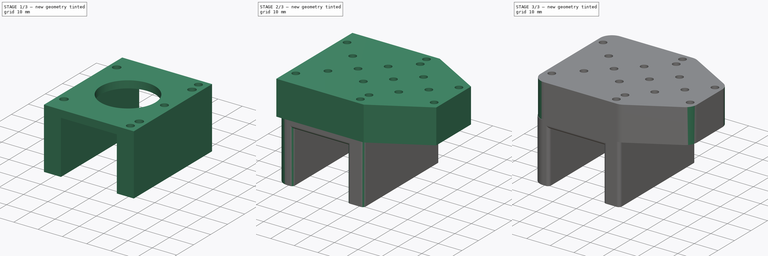
[diagram: build sequence overview — one tinted view per stage of 3, left to right]
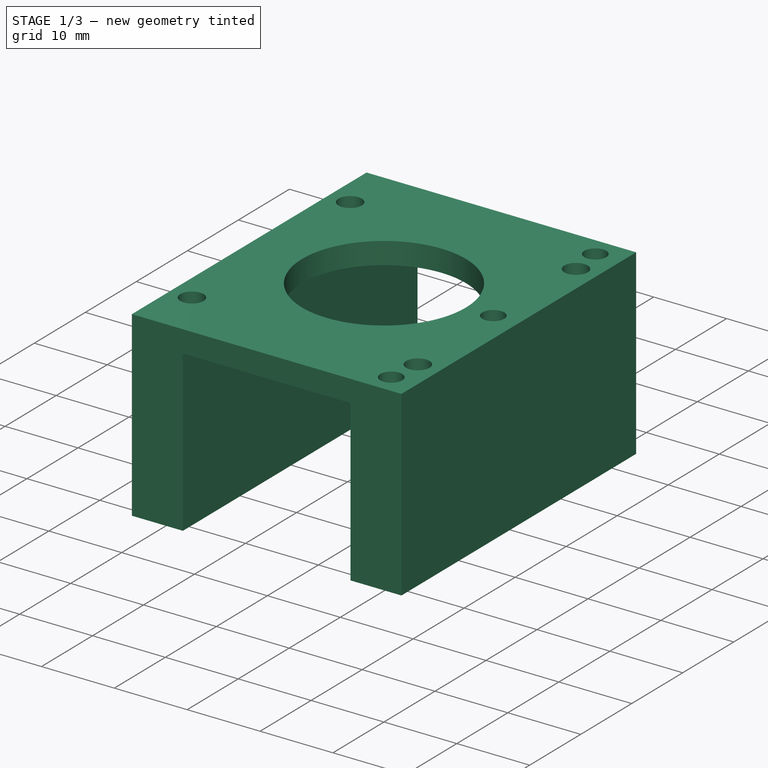
[diagram: stage 1 of 3 — iso view after this stage's code; geometry added in this stage tinted green]
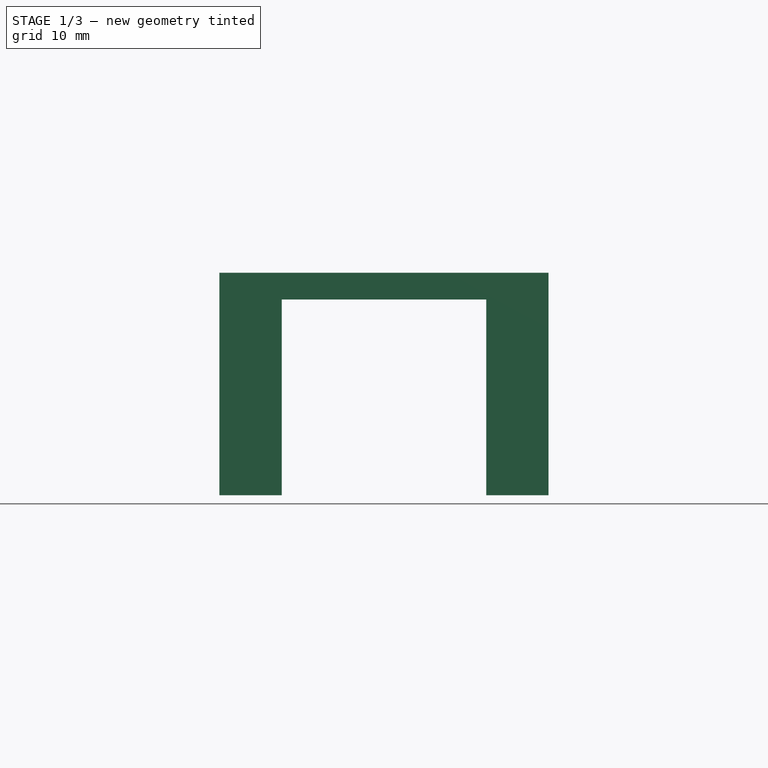
[diagram: stage 1 of 3 — front view after this stage's code; geometry added in this stage tinted green]
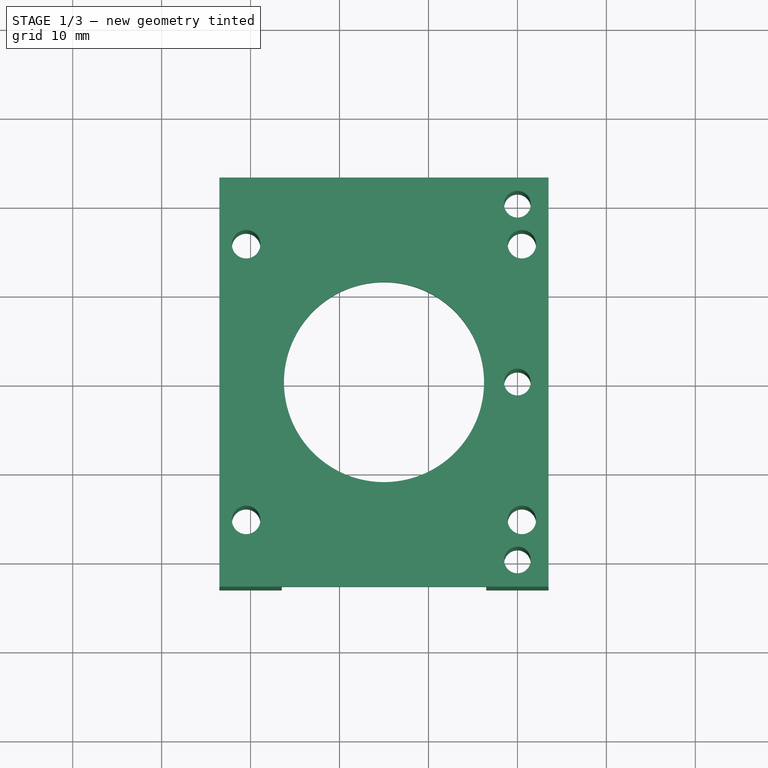
[diagram: stage 1 of 3 — top view after this stage's code; geometry added in this stage tinted green]
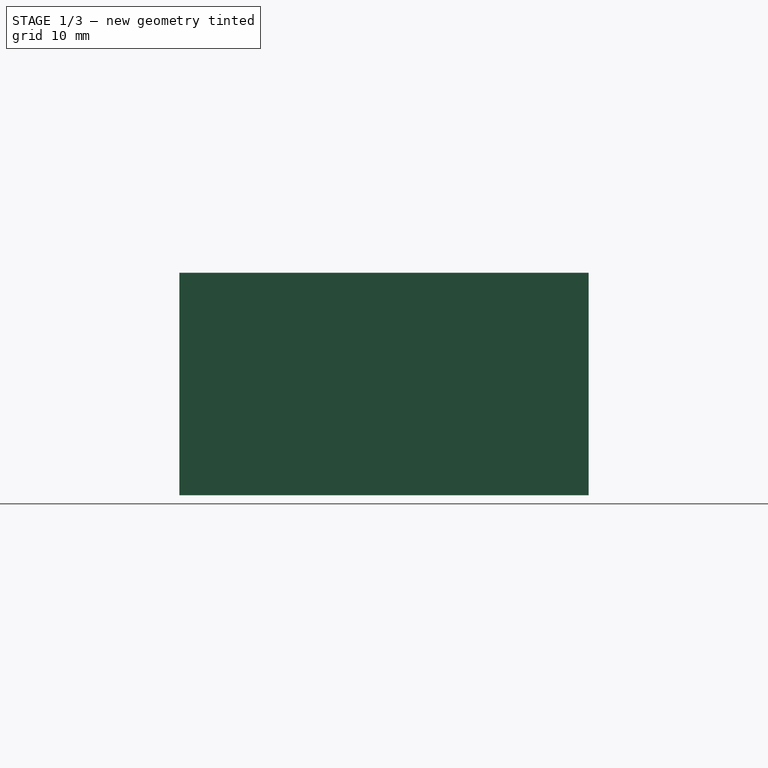
[diagram: stage 1 of 3 — right view after this stage's code; geometry added in this stage tinted green]
FCSTD DOCUMENT  (FreeCAD 1.1R38728 (Git))
Label: motor_holder
License: All rights reserved
LicenseURL: https://en.wikipedia.org/wiki/All_rights_reserved
objects: Sketcher::SketchObject×3, PartDesign::Pad×3, PartDesign::Fillet×3, PartDesign::Body×2, PartDesign::Chamfer×1, App::Link×1
note: 29 computed .brp shape members not serialized (recipe doc carries the construction recipe); baked Part::Feature solids carry a one-line shape summary decoded from their .brp
EXTERNAL_REF file=Masterfile.FCStd obj=Spreadsheet

FEATURE [Sketcher::SketchObject] Sketch002
  ArcFitTolerance = 1e-06
  AttachmentSupport = -> [XY_Plane001]
  FullyConstrained = false
  MakeInternals = false
  MapMode = 5
  expr: Constraints[20] = 31 mm
  expr: Constraints[22] = 0.5 mm
  expr: Constraints[23] = 37 mm
  expr: Constraints[24] = 46 mm
  expr: Constraints[29] = 40 mm
  expr: Constraints[30] = <<LinkDimensions>>.drillDiameter
  expr: Constraints[32] = <<LinkDimensions>>.drillDiameter + 0.2
  sketch-geometry (17):
    g0: LineSegment StartX=-33.5 StartY=23 StartZ=0 EndX=-33.5 EndY=-23 EndZ=0
    g1: LineSegment StartX=-33.5 StartY=-23 StartZ=0 EndX=3.5 EndY=-23 EndZ=0
    g2: LineSegment StartX=3.5 StartY=-23 StartZ=0 EndX=3.5 EndY=23 EndZ=0
    g3: LineSegment StartX=3.5 StartY=23 StartZ=0 EndX=-33.5 EndY=23 EndZ=0
    g4: LineSegment [constr] StartX=-15 StartY=17.0018 StartZ=0 EndX=-15 EndY=-12.6011 EndZ=0
    g5: Circle CenterX=-15 CenterY=0 CenterZ=0 NormalX=0 NormalY=0 NormalZ=1 AngleXU=0 Radius=11.25
    g6: Circle CenterX=-30.5 CenterY=15.5 CenterZ=0 NormalX=0 NormalY=0 NormalZ=1 AngleXU=0 Radius=1.6
    g7: Circle CenterX=0.5 CenterY=15.5 CenterZ=0 NormalX=0 NormalY=0 NormalZ=1 AngleXU=0 Radius=1.6
    g8: Circle CenterX=0 CenterY=20 CenterZ=0 NormalX=0 NormalY=0 NormalZ=1 AngleXU=0 Radius=1.5
    g9: Circle CenterX=0.5 CenterY=-15.5 CenterZ=0 NormalX=0 NormalY=0 NormalZ=1 AngleXU=0 Radius=1.6
    g10: Circle CenterX=0 CenterY=0 CenterZ=0 NormalX=0 NormalY=0 NormalZ=1 AngleXU=0 Radius=1.5
    g11: Circle CenterX=0 CenterY=-20 CenterZ=0 NormalX=0 NormalY=0 NormalZ=1 AngleXU=0 Radius=1.5
    g12: Circle CenterX=-30.5 CenterY=-15.5 CenterZ=0 NormalX=0 NormalY=0 NormalZ=1 AngleXU=0 Radius=1.6
    g13: LineSegment [constr] StartX=-30.5 StartY=15.5 StartZ=0 EndX=-30.5 EndY=-15.5 EndZ=0
    g14: LineSegment [constr] StartX=-30.5 StartY=-15.5 StartZ=0 EndX=0.5 EndY=-15.5 EndZ=0
    g15: LineSegment [constr] StartX=0.5 StartY=-15.5 StartZ=0 EndX=0.5 EndY=15.5 EndZ=0
    g16: LineSegment [constr] StartX=0.5 StartY=15.5 StartZ=0 EndX=-30.5 EndY=15.5 EndZ=0
  constraints (40):
    c: Coincident(g0,g1)
    c: Coincident(g1,g2)
    c: Coincident(g2,g3)
    c: Coincident(g3,g0)
    c: Vertical(g2)
    c: Horizontal(g1)
    c: Horizontal(g3)
    c: Symmetric(g0,g0,g-1)
    c: Symmetric(g0,g2,g4)
    c: Diameter(g5) = 22.5
    c: Coincident(g10,g-1)
    c: Coincident(g13,g14)
    c: Coincident(g14,g15)
    c: Coincident(g15,g16)
    c: Coincident(g16,g13)
    c: Vertical(g15)
    c: Horizontal(g14)
    c: Coincident(g13,g6)
    c: Coincident(g14,g9)
    c: Equal(g16,g13)
    c: DistanceX(g16,g16) = 31
    c: Symmetric(g7,g6,g4)
    c: DistanceX(g10,g9) = 0.5
    c: DistanceX(g3,g3) = 37
    c: DistanceY(g0,g0) = 46
    c: Coincident(g7,g15)
    c: Coincident(g12,g13)
    c: Symmetric(g6,g12,g-1)
    c: Symmetric(g8,g11,g-1)
    c: DistanceY(g11,g8) = 40
    c: Diameter(g11) = 3
    c: PointOnObject(g11,g-2)
    c: Diameter(g9) = 3.2
    c: PointOnObject(g5,g4)
    c: PointOnObject(g5,g-1)
    c: Equal(g8,g10)
    c: Equal(g10,g11)
    c: Equal(g9,g12)
    c: Equal(g12,g6)
    c: Equal(g6,g7)
FEATURE [PartDesign::Pad] Pad001
  Direction = (0,0,1)
  Length = 3
  Length2 = 10
  Profile = -> Sketch002
  ReferenceAxis = -> Sketch002 [N_Axis]
  Refine = true
  Reversed = true
  Suppressed = false
  Type = 0
  expr: Length = 3 mm
FEATURE [Sketcher::SketchObject] Sketch003
  ArcFitTolerance = 1e-06
  AttachmentSupport = -> [Pad001]
  ExternalGeometry = -> [Pad001]
  FullyConstrained = true
  MakeInternals = false
  MapMode = 5
  expr: Constraints[17] = <<LinkDimensions>>.drillDiameter
  sketch-geometry (15):
    g0: LineSegment StartX=-33.5 StartY=23 StartZ=0 EndX=-33.5 EndY=-23 EndZ=0
    g1: LineSegment StartX=-33.5 StartY=-23 StartZ=0 EndX=-26.5 EndY=-23 EndZ=0
    g2: LineSegment StartX=-26.5 StartY=-23 StartZ=0 EndX=-26.5 EndY=23 EndZ=0
    g3: LineSegment StartX=-26.5 StartY=23 StartZ=0 EndX=-33.5 EndY=23 EndZ=0
    g4: LineSegment StartX=-3.5 StartY=23 StartZ=0 EndX=-3.5 EndY=-23 EndZ=0
    g5: LineSegment StartX=-3.5 StartY=-23 StartZ=0 EndX=3.5 EndY=-23 EndZ=0
    g6: LineSegment StartX=3.5 StartY=-23 StartZ=0 EndX=3.5 EndY=23 EndZ=0
    g7: LineSegment StartX=3.5 StartY=23 StartZ=0 EndX=-3.5 EndY=23 EndZ=0
    g8: Circle CenterX=-30.5 CenterY=15.5 CenterZ=0 NormalX=0 NormalY=0 NormalZ=1 AngleXU=0 Radius=1.6
    g9: Circle CenterX=-30.5 CenterY=-15.5 CenterZ=0 NormalX=0 NormalY=0 NormalZ=1 AngleXU=0 Radius=1.6
    g10: Circle CenterX=0.5 CenterY=-15.5 CenterZ=0 NormalX=0 NormalY=0 NormalZ=1 AngleXU=0 Radius=1.6
    g11: Circle CenterX=0 CenterY=-20 CenterZ=0 NormalX=0 NormalY=0 NormalZ=1 AngleXU=0 Radius=1.5
    g12: Circle CenterX=0 CenterY=0 CenterZ=0 NormalX=0 NormalY=0 NormalZ=1 AngleXU=0 Radius=1.5
    g13: Circle CenterX=0.5 CenterY=15.5 CenterZ=0 NormalX=0 NormalY=0 NormalZ=1 AngleXU=0 Radius=1.6
    g14: Circle CenterX=0 CenterY=20 CenterZ=0 NormalX=0 NormalY=0 NormalZ=1 AngleXU=0 Radius=1.5
  constraints (34):
    c: Coincident(g0,g1)
    c: Coincident(g1,g2)
    c: Coincident(g2,g3)
    c: Coincident(g3,g0)
    c: Vertical(g2)
    c: Horizontal(g1)
    c: Coincident(g4,g5)
    c: Coincident(g5,g6)
    c: Coincident(g6,g7)
    c: Coincident(g7,g4)
    c: Vertical(g4)
    c: Vertical(g6)
    c: Horizontal(g5)
    c: Coincident(g12,g-1)
    c: Equal(g10,g13)
    c: Equal(g11,g12)
    c: Equal(g12,g14)
    c: Diameter(g11) = 3
    c: Coincident(g8,g-8)
    c: Coincident(g9,g-7)
    c: Coincident(g13,g-5)
    c: Equal(g13,g8)
    c: Equal(g8,g9)
    c: Equal(g-8,g8)
    c: Coincident(g10,g-6)
    c: Coincident(g11,g-4)
    c: Coincident(g14,g-9)
    c: PointOnObject(g2,g-10)
    c: PointOnObject(g4,g-10)
    c: Coincident(g0,g-11)
    c: Coincident(g5,g-11)
    c: Coincident(g0,g-10)
    c: Equal(g7,g3)
    c: Symmetric(g4,g6,g-2)
FEATURE [PartDesign::Pad] Pad002
  BaseFeature = -> Pad001
  Direction = (0,0,1)
  Length = 25
  Length2 = 10
  Profile = -> Sketch003
  ReferenceAxis = -> Sketch003 [N_Axis]
  Refine = true
  Reversed = true
  Suppressed = false
  Type = 0
  expr: Length = <<LinkDimensions>>.mShaftLength + 1
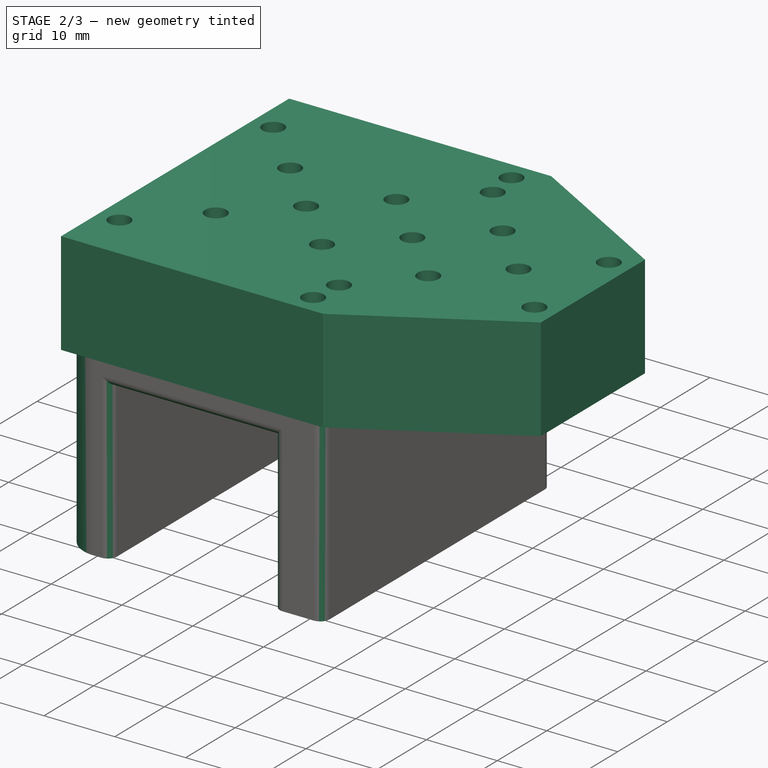
[diagram: stage 2 of 3 — iso view after this stage's code; geometry added in this stage tinted green]
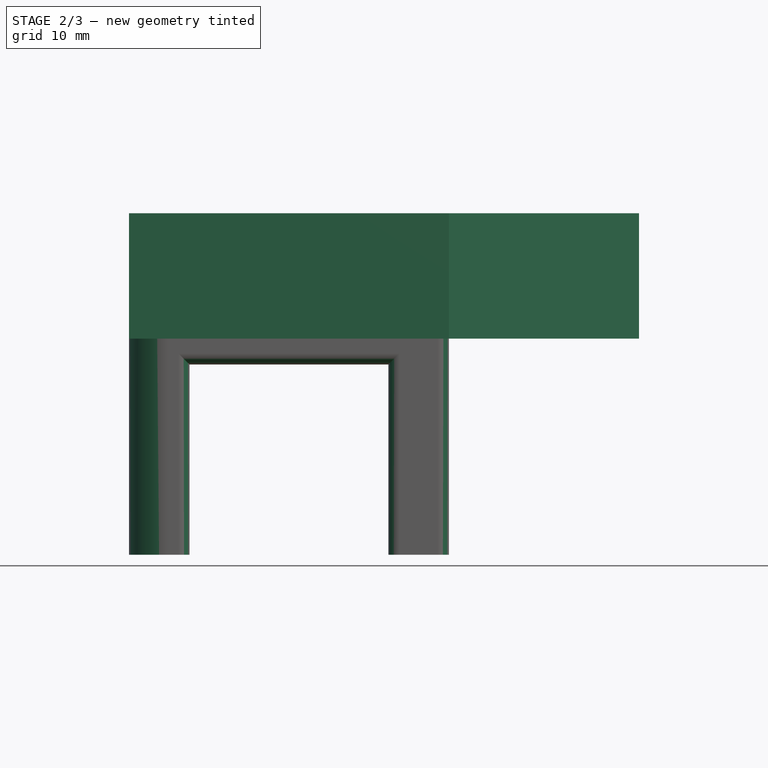
[diagram: stage 2 of 3 — front view after this stage's code; geometry added in this stage tinted green]
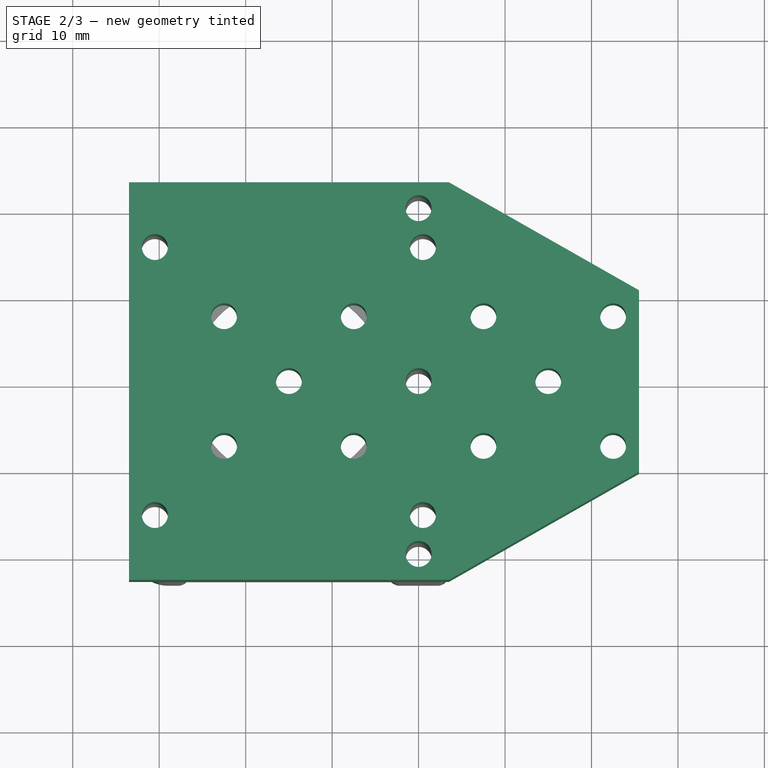
[diagram: stage 2 of 3 — top view after this stage's code; geometry added in this stage tinted green]
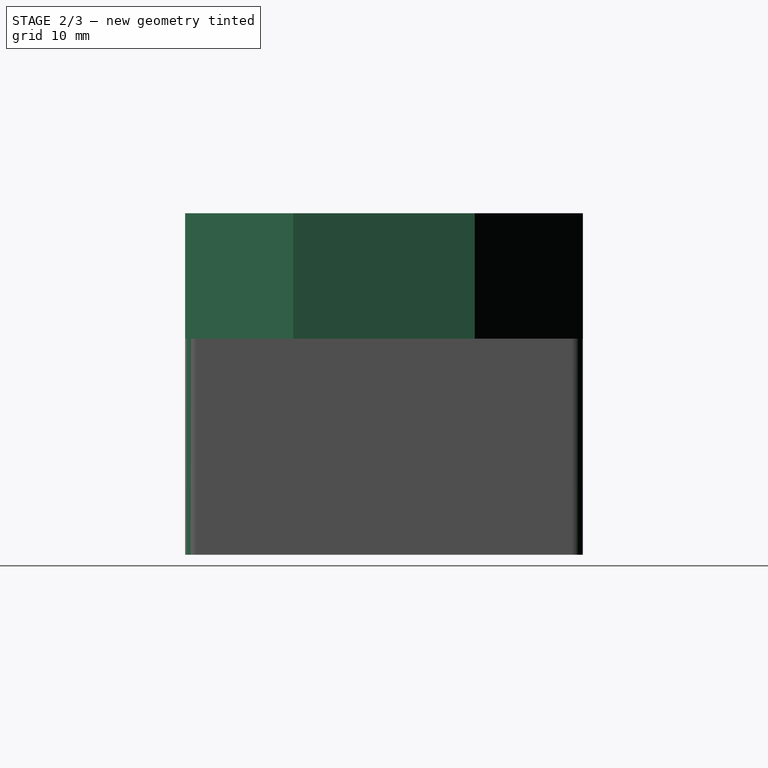
[diagram: stage 2 of 3 — right view after this stage's code; geometry added in this stage tinted green]
FEATURE [Sketcher::SketchObject] Sketch
  ArcFitTolerance = 1e-06
  AttachmentSupport = -> [XY_Plane]
  FullyConstrained = false
  MakeInternals = false
  MapMode = 5
  expr: Constraints[12] = <<LinkDimensions>>.mHoleSpacing
  expr: Constraints[24] = <<LinkDimensions>>.pulleyDiameter * 2
  expr: Constraints[3] = <<LinkDimensions>>.drillDiameter
  expr: Constraints[4] = 40 mm
  expr: Constraints[60] = <<LinkDimensions>>.mHolderThickness
  expr: Constraints[61] = <<LinkDimensions>>.mHolderThickness
  expr: Constraints[62] = <<LinkDimensions>>.mHolderThickness
  expr: Constraints[63] = <<LinkDimensions>>.mHolderThickness
  expr: Constraints[64] = <<LinkDimensions>>.mHolderThickness
  sketch-geometry (36):
    g0: Circle CenterX=0 CenterY=20 CenterZ=0 NormalX=0 NormalY=0 NormalZ=1 AngleXU=0 Radius=1.5
    g1: Circle CenterX=0 CenterY=-20 CenterZ=0 NormalX=0 NormalY=0 NormalZ=1 AngleXU=0 Radius=1.5
    g2: LineSegment [constr] StartX=-30.5 StartY=15.5 StartZ=0 EndX=-30.5 EndY=-15.5 EndZ=0
    g3: LineSegment [constr] StartX=-30.5 StartY=-15.5 StartZ=0 EndX=0.5 EndY=-15.5 EndZ=0
    g4: LineSegment [constr] StartX=0.5 StartY=-15.5 StartZ=0 EndX=0.5 EndY=15.5 EndZ=0
    g5: LineSegment [constr] StartX=0.5 StartY=15.5 StartZ=0 EndX=-30.5 EndY=15.5 EndZ=0
    g6: Circle CenterX=-30.5 CenterY=15.5 CenterZ=0 NormalX=0 NormalY=0 NormalZ=1 AngleXU=0 Radius=1.5
    g7: Circle CenterX=0.5 CenterY=15.5 CenterZ=0 NormalX=0 NormalY=0 NormalZ=1 AngleXU=0 Radius=1.5
    g8: Circle CenterX=-30.5 CenterY=-15.5 CenterZ=0 NormalX=0 NormalY=0 NormalZ=1 AngleXU=0 Radius=1.5
    g9: Circle CenterX=0.5 CenterY=-15.5 CenterZ=0 NormalX=0 NormalY=0 NormalZ=1 AngleXU=0 Radius=1.5
    g10: Circle CenterX=-15 CenterY=1e-16 CenterZ=0 NormalX=0 NormalY=0 NormalZ=1 AngleXU=0 Radius=1.5
    g11: Circle CenterX=0 CenterY=0 CenterZ=0 NormalX=0 NormalY=0 NormalZ=1 AngleXU=0 Radius=1.5
    g12: Circle CenterX=15 CenterY=1e-16 CenterZ=0 NormalX=0 NormalY=0 NormalZ=1 AngleXU=0 Radius=1.5
    g13: LineSegment [constr] StartX=7.5 StartY=7.5 StartZ=0 EndX=7.5 EndY=-7.5 EndZ=0
    g14: LineSegment [constr] StartX=7.5 StartY=-7.5 StartZ=0 EndX=22.5 EndY=-7.5 EndZ=0
    g15: LineSegment [constr] StartX=22.5 StartY=-7.5 StartZ=0 EndX=22.5 EndY=7.5 EndZ=0
    g16: LineSegment [constr] StartX=22.5 StartY=7.5 StartZ=0 EndX=7.5 EndY=7.5 EndZ=0
    g17: LineSegment [constr] StartX=15 StartY=-18.4107 StartZ=0 EndX=15 EndY=18.988 EndZ=0
    g18: Circle CenterX=7.5 CenterY=7.5 CenterZ=0 NormalX=0 NormalY=0 NormalZ=1 AngleXU=0 Radius=1.5
    g19: Circle CenterX=22.5 CenterY=7.5 CenterZ=0 NormalX=0 NormalY=0 NormalZ=1 AngleXU=0 Radius=1.5
    g20: Circle CenterX=22.5 CenterY=-7.5 CenterZ=0 NormalX=0 NormalY=0 NormalZ=1 AngleXU=0 Radius=1.5
    g21: Circle CenterX=7.5 CenterY=-7.5 CenterZ=0 NormalX=0 NormalY=0 NormalZ=1 AngleXU=0 Radius=1.5
    g22: LineSegment StartX=-33.5 StartY=23 StartZ=0 EndX=3.5 EndY=23 EndZ=0
    g23: LineSegment StartX=3.5 StartY=23 StartZ=0 EndX=25.5 EndY=10.5 EndZ=0
    g24: LineSegment StartX=25.5 StartY=10.5 StartZ=0 EndX=25.5 EndY=-10.5 EndZ=0
    g25: LineSegment StartX=25.5 StartY=-10.5 StartZ=0 EndX=3.5 EndY=-23 EndZ=0
    g26: LineSegment StartX=3.5 StartY=-23 StartZ=0 EndX=-33.5 EndY=-23 EndZ=0
    g27: LineSegment StartX=-33.5 StartY=-23 StartZ=0 EndX=-33.5 EndY=23 EndZ=0
    g28: LineSegment [constr] StartX=-22.5 StartY=7.5 StartZ=0 EndX=-22.5 EndY=-7.5 EndZ=0
    g29: LineSegment [constr] StartX=-22.5 StartY=-7.5 StartZ=0 EndX=-7.5 EndY=-7.5 EndZ=0
    g30: LineSegment [constr] StartX=-7.5 StartY=-7.5 StartZ=0 EndX=-7.5 EndY=7.5 EndZ=0
    g31: LineSegment [constr] StartX=-7.5 StartY=7.5 StartZ=0 EndX=-22.5 EndY=7.5 EndZ=0
    g32: Circle CenterX=-22.5 CenterY=7.5 CenterZ=0 NormalX=0 NormalY=0 NormalZ=1 AngleXU=0 Radius=1.5
    g33: Circle CenterX=-22.5 CenterY=-7.5 CenterZ=0 NormalX=0 NormalY=0 NormalZ=1 AngleXU=0 Radius=1.5
    g34: Circle CenterX=-7.5 CenterY=-7.5 CenterZ=0 NormalX=0 NormalY=0 NormalZ=1 AngleXU=0 Radius=1.5
    g35: Circle CenterX=-7.5 CenterY=7.5 CenterZ=0 NormalX=0 NormalY=0 NormalZ=1 AngleXU=0 Radius=1.5
  constraints (84):
    c: PointOnObject(g0,g-2)
    c: Symmetric(g0,g1,g-1)
    c: Equal(g0,g1)
    c: Diameter(g0) = 3
    c: DistanceY(g1,g0) = 40
    c: Coincident(g2,g3)
    c: Coincident(g3,g4)
    c: Coincident(g4,g5)
    c: Coincident(g5,g2)
    c: Vertical(g4)
    c: Horizontal(g3)
    c: Horizontal(g5)
    c: DistanceX(g5,g5) = 31
    c: Equal(g2,g5)
    c: Symmetric(g2,g2,g-1)
    c: Coincident(g6,g2)
    c: Coincident(g7,g4)
    c: Coincident(g8,g2)
    c: Coincident(g9,g3)
    c: Equal(g6,g8)
    c: Equal(g8,g9)
    c: Equal(g9,g7)
    c: Equal(g7,g1)
    c: Coincident(g11,g-1)
    c: DistanceX(g10,g12) = 30
    c: Symmetric(g10,g12,g-2)
    c: Equal(g10,g11)
    c: Equal(g11,g12)
    c: Equal(g12,g9)
    c: Symmetric(g2,g4,g10)
    c: Coincident(g13,g14)
    c: Coincident(g14,g15)
    c: Coincident(g15,g16)
    c: Coincident(g16,g13)
    c: Vertical(g13)
    c: Horizontal(g14)
    c: Horizontal(g16)
    c: Distance(g13,g15) = 15
    c: Equal(g16,g13)
    c: Symmetric(g15,g14,g-1)
    c: PointOnObject(g12,g17)
    c: Symmetric(g13,g15,g17)
    c: Coincident(g18,g13)
    c: Coincident(g19,g15)
    c: Coincident(g20,g14)
    c: Coincident(g21,g13)
    c: Equal(g18,g19)
    c: Equal(g19,g20)
    c: Equal(g20,g21)
    c: Equal(g21,g12)
    c: Horizontal(g22)
    c: Coincident(g22,g23)
    c: Coincident(g23,g24)
    c: Coincident(g24,g25)
    c: Coincident(g25,g26)
    c: Coincident(g26,g27)
    c: Coincident(g27,g22)
    c: Symmetric(g22,g26,g-1)
    c: Symmetric(g22,g25,g-1)
    c: Symmetric(g23,g24,g-1)
    c: DistanceX(g22,g2) = 3
    c: DistanceX(g4,g22) = 3
    c: DistanceX(g15,g23) = 3
    c: DistanceY(g25,g1) = 3
    c: DistanceY(g24,g14) = 3
    c: Coincident(g28,g29)
    c: Coincident(g29,g30)
    c: Coincident(g30,g31)
    c: Coincident(g31,g28)
    c: Vertical(g28)
    c: Vertical(g30)
    c: Horizontal(g29)
    c: Horizontal(g31)
    c: Symmetric(g30,g13,g-2)
    c: Equal(g31,g28)
    c: Equal(g28,g16)
    c: Coincident(g32,g28)
    c: Coincident(g33,g28)
    c: Coincident(g34,g29)
    c: Coincident(g35,g30)
    c: Equal(g32,g33)
    c: Equal(g33,g34)
    c: Equal(g34,g35)
    c: Equal(g35,g10)
FEATURE [PartDesign::Pad] Pad
  Direction = (0,0,1)
  Length = 14.5
  Length2 = 10
  Profile = -> Sketch
  ReferenceAxis = -> Sketch [N_Axis]
  Refine = true
  Suppressed = false
  Type = 0
  expr: Length = <<LinkDimensions>>.mHolderHeight
FEATURE [PartDesign::Fillet] Fillet001
  Base = -> Pad002 [Edge31,Edge8,Edge10,Edge18,Edge9,Edge12,Edge16,Edge32]
  BaseFeature = -> Pad002
  Radius = 1.3
  Refine = true
  SupportTransform = false
  Suppressed = false
  UseAllEdges = false
  expr: Radius = <<LinkDimensions>>.filletRadius
FEATURE [PartDesign::Body] Body  label="motor_holder1"
  AllowCompound = false
  Group = -> [Sketch,Pad,Chamfer,Fillet]
  Origin = -> Origin
  Tip = -> Fillet
FEATURE [PartDesign::Fillet] Fillet002
  Base = -> Fillet001 [Edge10,Edge18]
  BaseFeature = -> Fillet001
  Radius = 4.6
  Refine = true
  SupportTransform = false
  Suppressed = false
  UseAllEdges = false
  expr: Radius = 4.6 mm
FEATURE [PartDesign::Body] Body001  label="motor_holder2"
  AllowCompound = false
  Group = -> [Sketch002,Pad001,Sketch003,Pad002,Fillet001,Fillet002]
  Origin = -> Origin001
  Placement = pos=(0,2.2e-15,14.5) rot=(1,0,0;3.14159rad)
  Tip = -> Fillet002
  expr: .Placement.Base.z = <<LinkDimensions>>.mHolderHeight
FEATURE [App::Link] Link001  label="LinkDimensions"
  LinkedObject = -> <external Masterfile.FCStd>#Spreadsheet
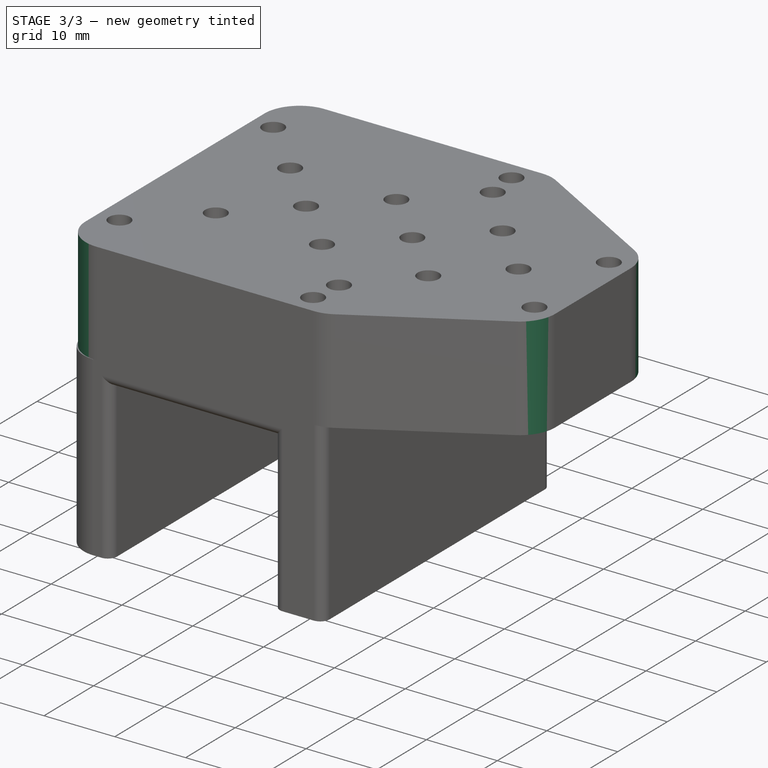
[diagram: stage 3 of 3 — iso view after this stage's code; geometry added in this stage tinted green]
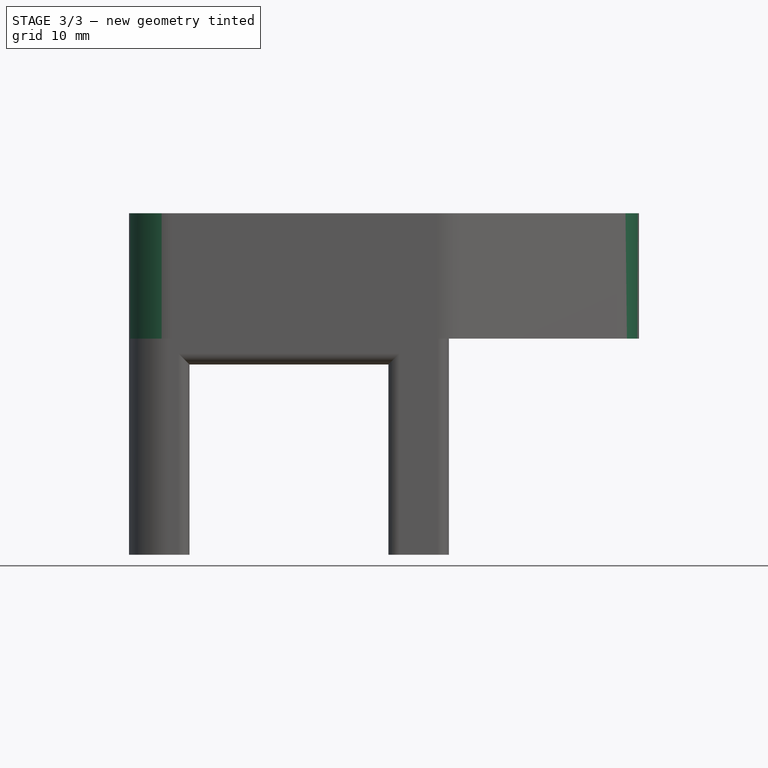
[diagram: stage 3 of 3 — front view after this stage's code; geometry added in this stage tinted green]
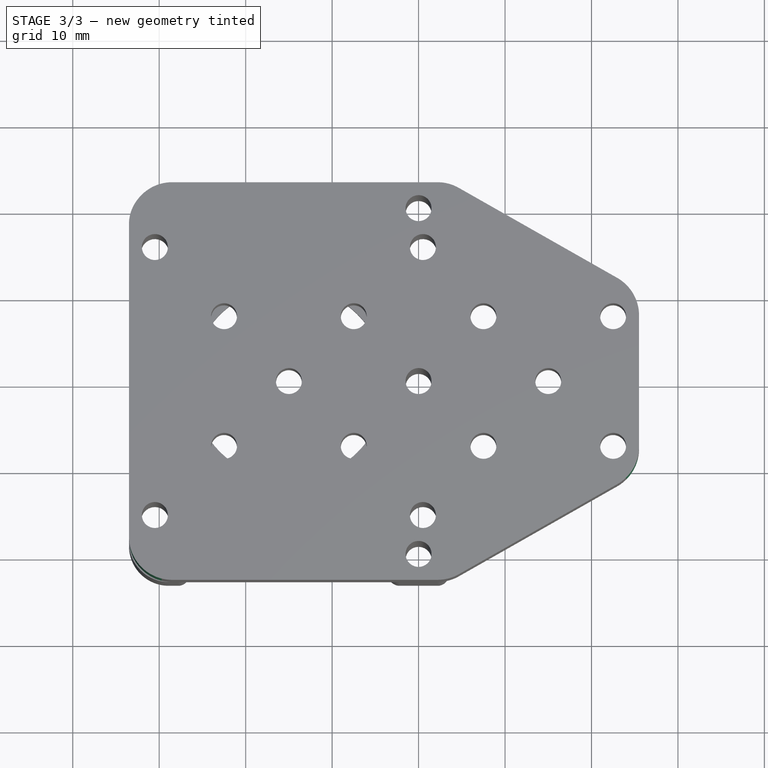
[diagram: stage 3 of 3 — top view after this stage's code; geometry added in this stage tinted green]
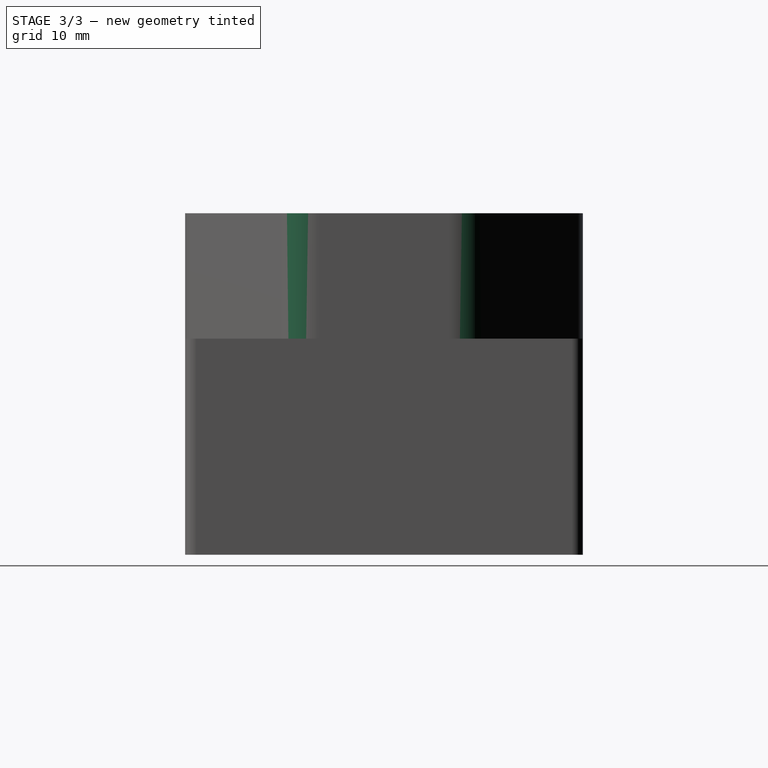
[diagram: stage 3 of 3 — right view after this stage's code; geometry added in this stage tinted green]
FEATURE [PartDesign::Chamfer] Chamfer
  Angle = 45
  Base = -> Pad [Edge56,Edge62,Edge59,Edge53]
  BaseFeature = -> Pad
  ChamferType = 0
  FlipDirection = false
  Refine = true
  Size = 1.5
  Size2 = 1
  SupportTransform = false
  Suppressed = false
  UseAllEdges = false
  expr: Size = 1.5 mm
FEATURE [PartDesign::Fillet] Fillet
  Base = -> Chamfer [Edge54,Edge55,Edge53,Edge52,Edge51,Edge50]
  BaseFeature = -> Chamfer
  Radius = 5
  Refine = true
  SupportTransform = false
  Suppressed = false
  UseAllEdges = false
  expr: Radius = 5 mm
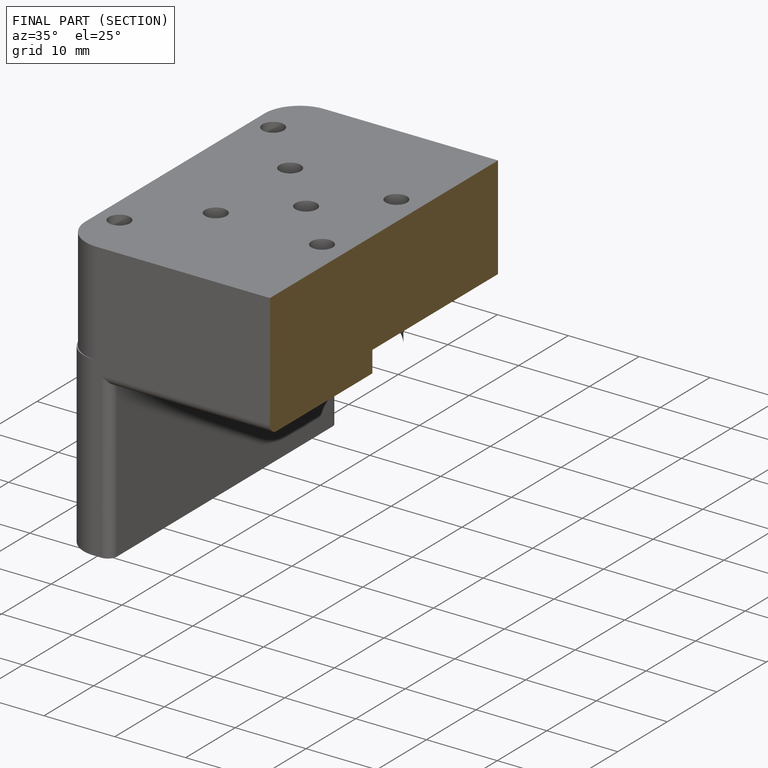
[diagram: finished part — half-section view (interior)]
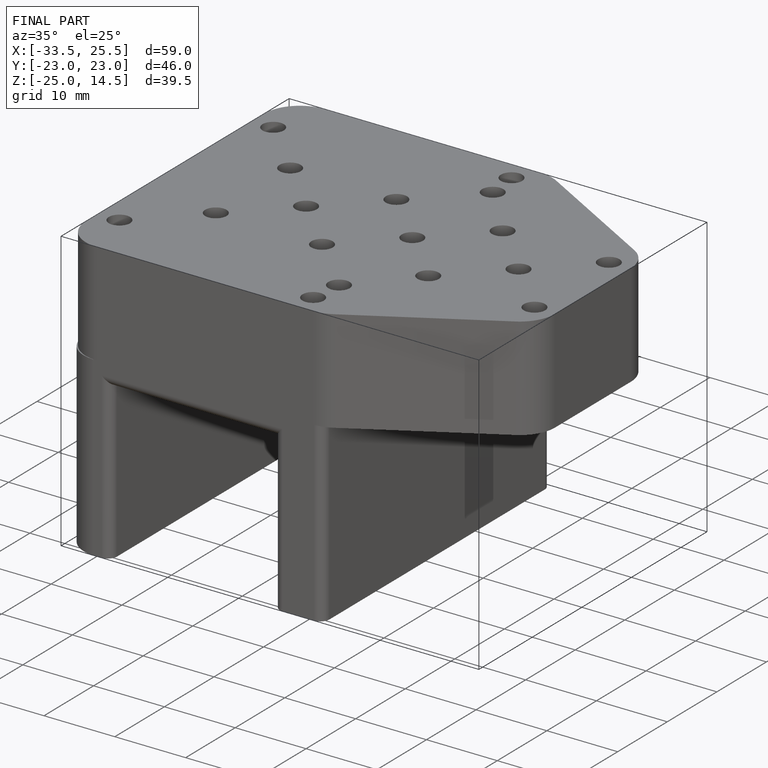
[diagram: finished part — iso view with bounding-box wireframe]
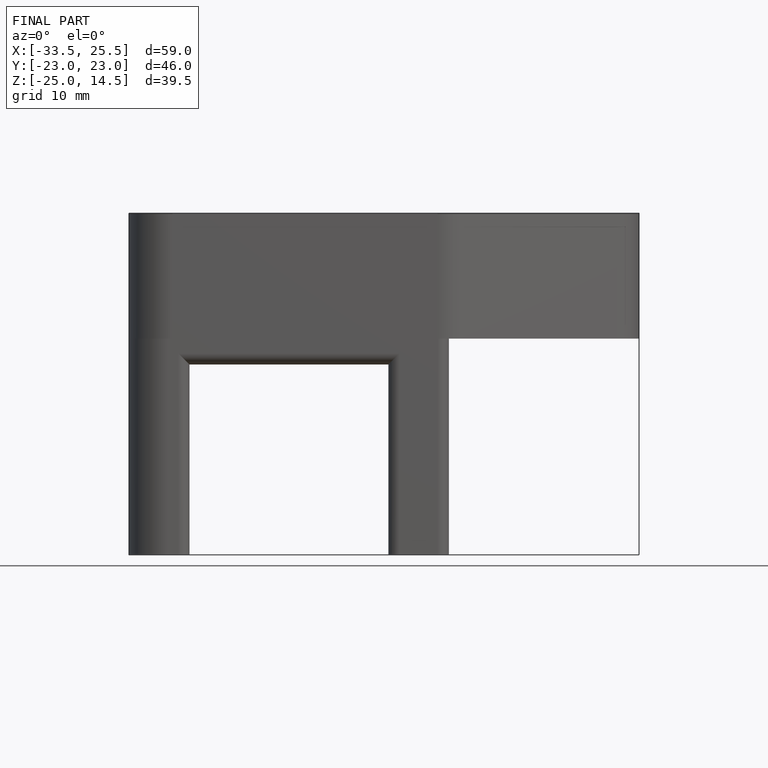
[diagram: finished part — front view with bounding-box wireframe]
